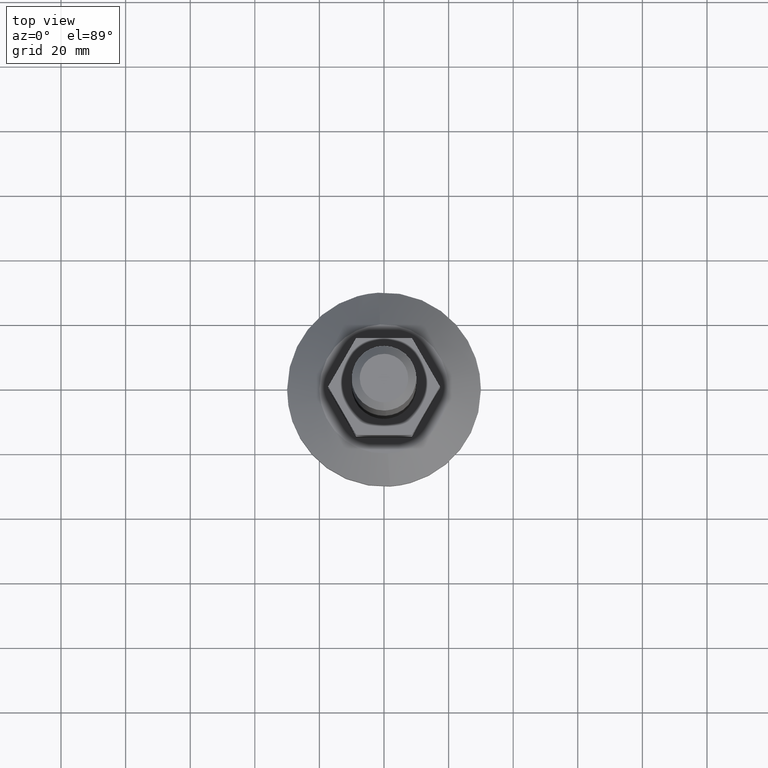
[diagram: clean part render]
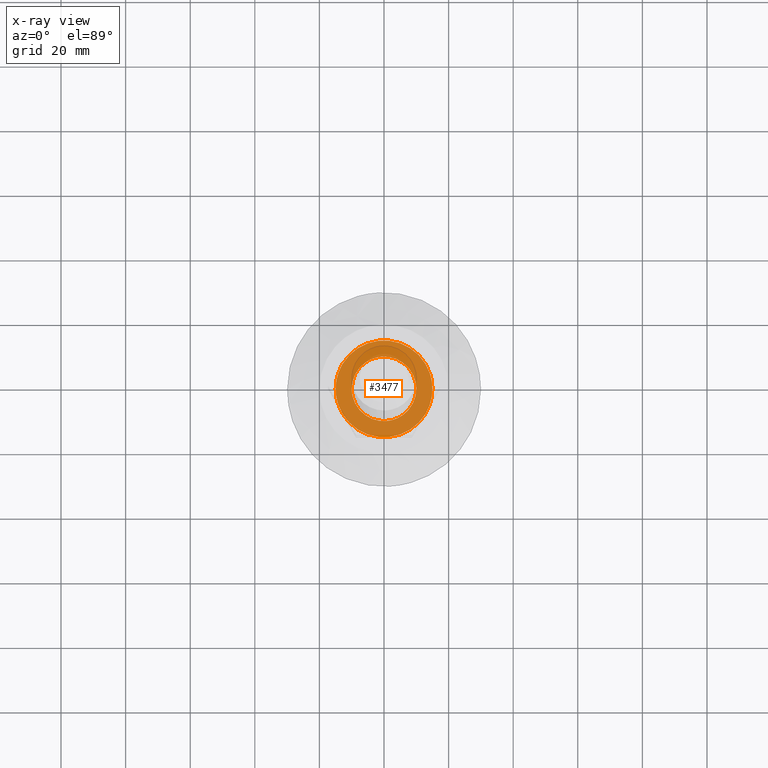
[diagram: x-ray — body ghosted, one internal face saturated and labeled with its STEP entity id]
A machine part, top view, then the same camera in x-ray: the body is ghosted and one INTERNAL B-rep face — a face not visible from any outside direction — is saturated and labeled: STEP entity #3477.
In plain terms, the highlighted face is a freeform B-spline surface patch.
Its self-contained STEP definition (entity closure, byte-faithful):
#3218=CARTESIAN_POINT('',(-14.979491943233780,0.0,17.0));
#3219=VERTEX_POINT('',#3218);
#3220=CARTESIAN_POINT('',(-12.898959870394890,7.615905273856357,17.000000000019369));
#3221=VERTEX_POINT('',#3220);
#3222=CARTESIAN_POINT('',(-14.979491943233780,0.0,17.0));
#3223=CARTESIAN_POINT('',(-14.979491943248219,4.092135117578267,17.000000000009681));
#3224=CARTESIAN_POINT('',(-12.898959870394892,7.615905273856357,17.000000000019366));
#3232=(BOUNDED_CURVE()B_SPLINE_CURVE(2,(#3222,#3223,#3224),.UNSPECIFIED.,.F.,.U.)B_SPLINE_CURVE_WITH_KNOTS((3,3),(0.500000000000000,0.586766463436841),.UNSPECIFIED.)CURVE()GEOMETRIC_REPRESENTATION_ITEM()RATIONAL_B_SPLINE_CURVE((1.0,0.898346764955696,0.867254263525057))REPRESENTATION_ITEM(''));
#3233=EDGE_CURVE('',#3219,#3221,#3232,.T.);
#3235=CARTESIAN_POINT('',(12.898959870394890,-7.615905273856360,17.000000000019369));
#3236=VERTEX_POINT('',#3235);
#3237=CARTESIAN_POINT('',(12.898959870394890,-7.615905273856360,17.000000000019369));
#3238=CARTESIAN_POINT('',(12.381786787983510,-8.492122148283686,17.000000000019181));
#3239=CARTESIAN_POINT('',(11.198233365464461,-10.097305114893480,17.000000000018758));
#3240=CARTESIAN_POINT('',(9.192119650081557,-11.917653669707811,17.000000000017710));
#3241=CARTESIAN_POINT('',(6.828626643050086,-13.428588895251810,17.000000000016470));
#3242=CARTESIAN_POINT('',(4.314424262663824,-14.448539244801241,17.000000000015049));
#3243=CARTESIAN_POINT('',(1.504530548045886,-14.979215128278311,17.000000000013280));
#3244=CARTESIAN_POINT('',(-0.844152398610510,-15.010901967603170,17.000000000011809));
#3245=CARTESIAN_POINT('',(-3.015975379426239,-14.717586261179219,17.000000000010321));
#3246=CARTESIAN_POINT('',(-5.131579953584293,-14.139718628670231,17.000000000008850));
#3247=CARTESIAN_POINT('',(-7.085809160564939,-13.256206863806220,17.000000000007510));
#3248=CARTESIAN_POINT('',(-8.933665283922347,-12.078956381537960,17.000000000005901));
#3249=CARTESIAN_POINT('',(-10.495032318670560,-10.764702539129640,17.000000000005251));
#3250=CARTESIAN_POINT('',(-11.980453751724969,-9.082563572247059,17.000000000003109));
#3251=CARTESIAN_POINT('',(-13.202558843956410,-7.199420925720881,17.000000000002650));
#3252=CARTESIAN_POINT('',(-14.228482255260420,-4.919529808394644,17.000000000001371));
#3253=CARTESIAN_POINT('',(-14.847131797653489,-2.492724376072984,17.000000000000139));
#3254=CARTESIAN_POINT('',(-14.979517634697860,-0.763049440430736,17.000000000000671));
#3255=CARTESIAN_POINT('',(-14.979491943233780,0.0,17.0));
#3256=B_SPLINE_CURVE_WITH_KNOTS('',3,(#3237,#3238,#3239,#3240,#3241,#3242,#3243,#3244,#3245,#3246,#3247,#3248,#3249,#3250,#3251,#3252,#3253,#3254,#3255),.UNSPECIFIED.,.F.,.U.,(4,1,1,1,1,1,1,1,1,1,1,1,1,1,1,1,4),(0.000000413182725,3.052361456843201,5.952122789934130,8.088836735347666,11.446408036265490,14.041007563815850,16.635358329079850,18.466774690645469,20.603379410830790,23.197973959234080,24.876766786618528,27.166068205609559,29.302755389090880,31.592054838904691,33.881286930261837,36.781133690358331,39.070297361203082),.UNSPECIFIED.);
#3257=EDGE_CURVE('',#3236,#3219,#3256,.T.);
#3294=CARTESIAN_POINT('',(14.979491943233780,0.0,17.0));
#3295=VERTEX_POINT('',#3294);
#3296=CARTESIAN_POINT('',(-12.898959870394890,7.615905273856357,17.000000000019369));
#3297=CARTESIAN_POINT('',(-12.201052544517960,8.799041625198040,17.000000000019138));
#3298=CARTESIAN_POINT('',(-11.019153187980599,10.286755244280901,17.000000000018620));
#3299=CARTESIAN_POINT('',(-8.858441005360595,12.149224774424820,17.000000000017572));
#3300=CARTESIAN_POINT('',(-6.741482330433480,13.487420319645601,17.000000000016438));
#3301=CARTESIAN_POINT('',(-3.684285451930157,14.655894863604420,17.000000000014669));
#3302=CARTESIAN_POINT('',(-0.381418389858491,15.107085192644620,17.000000000012591));
#3303=CARTESIAN_POINT('',(2.724306440153174,14.815633809699870,17.000000000010559));
#3304=CARTESIAN_POINT('',(5.031818431381211,14.159828258774880,17.000000000008939));
#3305=CARTESIAN_POINT('',(7.317293758213918,13.154700000083899,17.000000000007130));
#3306=CARTESIAN_POINT('',(9.283706816648447,11.859194033024220,17.000000000006050));
#3307=CARTESIAN_POINT('',(11.351683395579300,9.890488409062805,17.000000000003610));
#3308=CARTESIAN_POINT('',(12.690260436506451,8.080481391068707,17.000000000002998));
#3309=CARTESIAN_POINT('',(13.934253367290371,5.684353731162332,17.000000000001990));
#3310=CARTESIAN_POINT('',(14.761081990451220,3.154066606131092,16.999999999999481));
#3311=CARTESIAN_POINT('',(14.979593212069920,1.017446209017673,17.000000000002160));
#3312=CARTESIAN_POINT('',(14.979491943233780,0.0,17.0));
#3313=B_SPLINE_CURVE_WITH_KNOTS('',3,(#3296,#3297,#3298,#3299,#3300,#3301,#3302,#3303,#3304,#3305,#3306,#3307,#3308,#3309,#3310,#3311,#3312),.UNSPECIFIED.,.F.,.U.,(4,1,1,1,1,1,1,1,1,1,1,1,1,1,4),(0.000000413176451,4.120699263780416,5.646905889214317,8.546695466628840,11.599090458388719,15.414570021577870,18.466774690643689,20.908676952986319,22.587465302164500,25.945116339627280,27.929170241974798,31.134197196217709,32.660406594574887,36.017942404795221,39.070297361203103),.UNSPECIFIED.);
#3314=EDGE_CURVE('',#3221,#3295,#3313,.T.);
#3322=CARTESIAN_POINT('',(14.979491943233780,0.0,17.0));
#3323=CARTESIAN_POINT('',(14.979491943248220,-4.092135117578271,17.000000000009685));
#3324=CARTESIAN_POINT('',(12.898959870394892,-7.615905273856360,17.000000000019366));
#3332=(BOUNDED_CURVE()B_SPLINE_CURVE(2,(#3322,#3323,#3324),.UNSPECIFIED.,.F.,.U.)B_SPLINE_CURVE_WITH_KNOTS((3,3),(0.0,0.086766463436841),.UNSPECIFIED.)CURVE()GEOMETRIC_REPRESENTATION_ITEM()RATIONAL_B_SPLINE_CURVE((1.0,0.898346764955696,0.867254263525057))REPRESENTATION_ITEM(''));
#3333=EDGE_CURVE('',#3295,#3236,#3332,.T.);
#3357=CARTESIAN_POINT('',(0.610485395531877,-9.981347984207456,17.000000000000131));
#3358=VERTEX_POINT('',#3357);
#3364=CARTESIAN_POINT('',(-10.0,0.0,17.000000000000249));
#3365=VERTEX_POINT('',#3364);
#3366=CARTESIAN_POINT('',(0.610485395531877,-9.981347984207456,17.000000000000128));
#3367=CARTESIAN_POINT('',(0.305527633077801,-10.0,17.000000000000256));
#3368=CARTESIAN_POINT('',(0.0,-10.0,17.000000000000249));
#3369=CARTESIAN_POINT('',(-10.000000000000002,-10.000000000000002,17.000000000000256));
#3370=CARTESIAN_POINT('',(-10.0,0.0,17.000000000000249));
#3378=(BOUNDED_CURVE()B_SPLINE_CURVE(2,(#3366,#3367,#3368,#3369,#3370),.UNSPECIFIED.,.F.,.U.)B_SPLINE_CURVE_WITH_KNOTS((3,2,3),(0.239332962238799,0.250000000000000,0.500000000000000),.UNSPECIFIED.)CURVE()GEOMETRIC_REPRESENTATION_ITEM()RATIONAL_B_SPLINE_CURVE((0.976072041666410,0.987502787899669,1.0,0.707106781186548,1.0))REPRESENTATION_ITEM(''));
#3379=EDGE_CURVE('',#3358,#3365,#3378,.T.);
#3381=CARTESIAN_POINT('',(-0.610485395531879,9.981347984207456,17.000000000000131));
#3382=VERTEX_POINT('',#3381);
#3383=CARTESIAN_POINT('',(-10.0,0.0,17.000000000000249));
#3384=CARTESIAN_POINT('',(-10.0,9.407060668883862,17.000000000000249));
#3385=CARTESIAN_POINT('',(-0.610485395531881,9.981347984207460,17.000000000000252));
#3393=(BOUNDED_CURVE()B_SPLINE_CURVE(2,(#3383,#3384,#3385),.UNSPECIFIED.,.F.,.U.)B_SPLINE_CURVE_WITH_KNOTS((3,3),(0.500000000000000,0.739332962238799),.UNSPECIFIED.)CURVE()GEOMETRIC_REPRESENTATION_ITEM()RATIONAL_B_SPLINE_CURVE((1.0,0.719603993286878,0.976072041666410))REPRESENTATION_ITEM(''));
#3394=EDGE_CURVE('',#3365,#3382,#3393,.T.);
#3426=CARTESIAN_POINT('',(10.0,0.0,17.000000000000249));
#3427=VERTEX_POINT('',#3426);
#3428=CARTESIAN_POINT('',(-0.610485395531879,9.981347984207456,17.000000000000131));
#3429=CARTESIAN_POINT('',(-0.305527633077802,10.0,17.000000000000245));
#3430=CARTESIAN_POINT('',(0.0,10.0,17.000000000000249));
#3431=CARTESIAN_POINT('',(10.000000000000002,10.000000000000002,17.000000000000256));
#3432=CARTESIAN_POINT('',(10.0,0.0,17.000000000000249));
#3440=(BOUNDED_CURVE()B_SPLINE_CURVE(2,(#3428,#3429,#3430,#3431,#3432),.UNSPECIFIED.,.F.,.U.)B_SPLINE_CURVE_WITH_KNOTS((3,2,3),(0.739332962238799,0.750000000000000,1.0),.UNSPECIFIED.)CURVE()GEOMETRIC_REPRESENTATION_ITEM()RATIONAL_B_SPLINE_CURVE((0.976072041666410,0.987502787899669,1.0,0.707106781186548,1.0))REPRESENTATION_ITEM(''));
#3441=EDGE_CURVE('',#3382,#3427,#3440,.T.);
#3443=CARTESIAN_POINT('',(10.0,0.0,17.000000000000249));
#3444=CARTESIAN_POINT('',(10.0,-9.407060668883863,17.000000000000249));
#3445=CARTESIAN_POINT('',(0.610485395531879,-9.981347984207458,17.000000000000252));
#3453=(BOUNDED_CURVE()B_SPLINE_CURVE(2,(#3443,#3444,#3445),.UNSPECIFIED.,.F.,.U.)B_SPLINE_CURVE_WITH_KNOTS((3,3),(0.0,0.239332962238799),.UNSPECIFIED.)CURVE()GEOMETRIC_REPRESENTATION_ITEM()RATIONAL_B_SPLINE_CURVE((1.0,0.719603993286878,0.976072041666410))REPRESENTATION_ITEM(''));
#3454=EDGE_CURVE('',#3427,#3358,#3453,.T.);
#3460=CARTESIAN_POINT('',(-16.475943130296510,-16.475661989387589,17.0));
#3461=CARTESIAN_POINT('',(16.475943933859082,-16.475661989387589,17.0));
#3462=CARTESIAN_POINT('',(-16.475943130296510,16.475661185825022,17.0));
#3463=CARTESIAN_POINT('',(16.475943933859082,16.475661185825022,17.0));
#3464=B_SPLINE_SURFACE_WITH_KNOTS('',1,1,((#3460,#3462),(#3461,#3463)),.UNSPECIFIED.,.F.,.F.,.U.,(2,2),(2,2),(0.0,32.951887064155592),(0.0,32.951323175212607),.UNSPECIFIED.);
#3465=ORIENTED_EDGE('',*,*,#3333,.T.);
#3466=ORIENTED_EDGE('',*,*,#3257,.T.);
#3467=ORIENTED_EDGE('',*,*,#3233,.T.);
#3468=ORIENTED_EDGE('',*,*,#3314,.T.);
#3469=EDGE_LOOP('',(#3465,#3466,#3467,#3468));
#3470=FACE_OUTER_BOUND('',#3469,.T.);
#3471=ORIENTED_EDGE('',*,*,#3394,.F.);
#3472=ORIENTED_EDGE('',*,*,#3379,.F.);
#3473=ORIENTED_EDGE('',*,*,#3454,.F.);
#3474=ORIENTED_EDGE('',*,*,#3441,.F.);
#3475=EDGE_LOOP('',(#3471,#3472,#3473,#3474));
#3476=FACE_BOUND('',#3475,.T.);
#3477=ADVANCED_FACE('',(#3470,#3476),#3464,.F.);